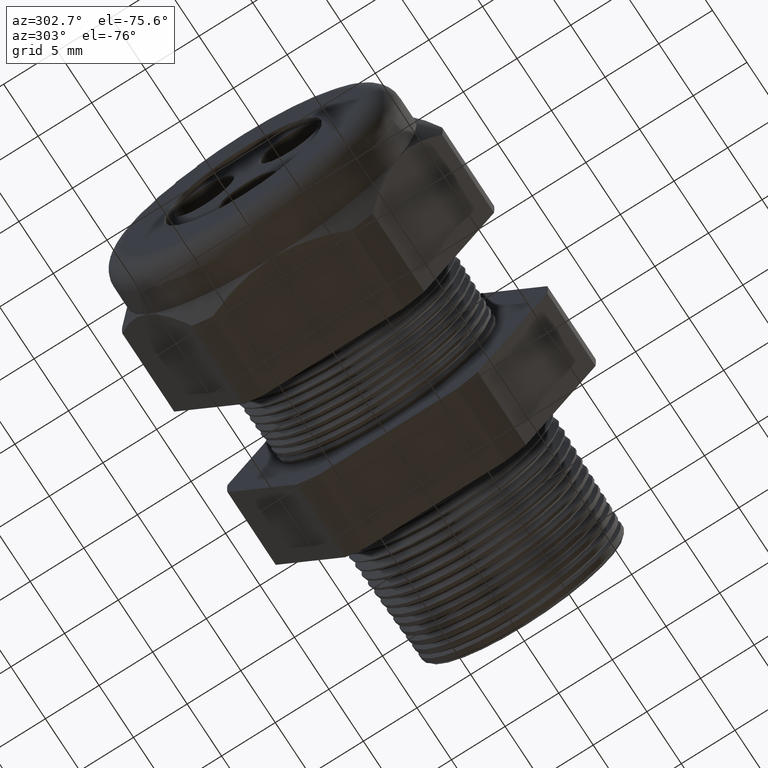
[diagram: clean part render]
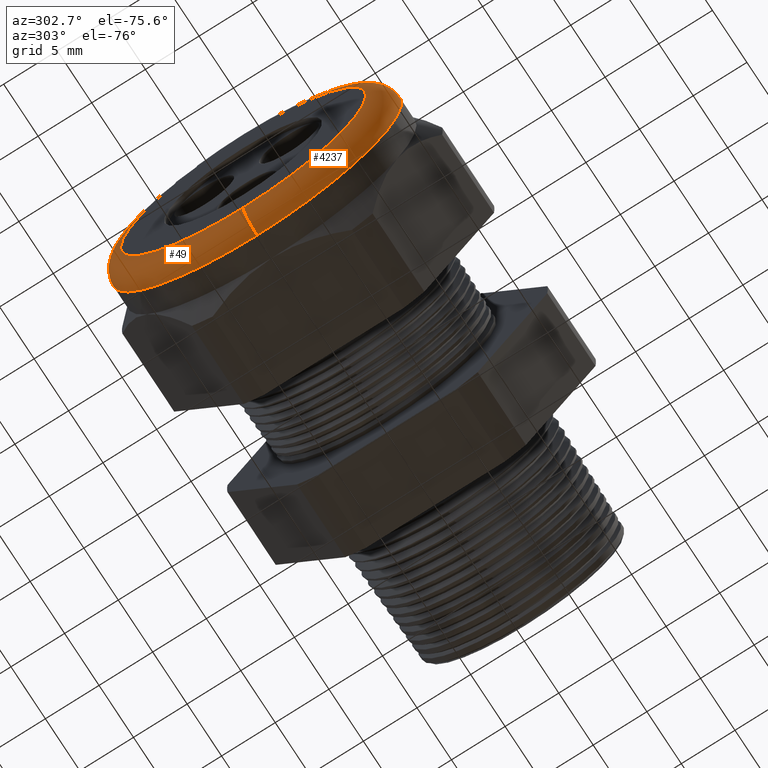
[diagram: same view with one multi-face feature highlighted, each face labeled with its STEP entity id]
A machine part, auxiliary view. The highlighted faces form ONE feature: a constant-radius fillet chain: 2 tangent blend faces with common blend radius 2.032 mm. The faces share edges in the B-rep.
Their STEP definitions:
[1] entity #49 (Torus):
#49 = ADVANCED_FACE ( 'NONE', ( #608 ), #607, .T. ) ;
#602 = DIRECTION ( 'NONE',  ( 0.0000000000000000000, 0.0000000000000000000, 1.000000000000000000 ) ) ;
#603 = DIRECTION ( 'NONE',  ( -1.000000000000000000, 0.0000000000000000000, 0.0000000000000000000 ) ) ;
#604 = CARTESIAN_POINT ( 'NONE',  ( -1.330000000000000100, 0.0000000000000000000, 0.0000000000000000000 ) ) ;
#605 = AXIS2_PLACEMENT_3D ( 'NONE', #604, #603, #602 ) ;
#607 = TOROIDAL_SURFACE ( 'NONE', #605, 0.4499999999999999600, 0.08000000000000000200 ) ;
#608 = FACE_OUTER_BOUND ( 'NONE', #5324, .T. ) ;
#3717 = CARTESIAN_POINT ( 'NONE',  ( -1.330000000000000100, 0.0000000000000000000, 0.0000000000000000000 ) ) ;
#3718 = AXIS2_PLACEMENT_3D ( 'NONE', #3717, #3779, #3778 ) ;
#3719 = CIRCLE ( 'NONE', #3718, 0.5299999999999999200 ) ;
#3721 = CARTESIAN_POINT ( 'NONE',  ( -1.330000000000000100, 0.0000000000000000000, -0.5299999999999999200 ) ) ;
#3722 = DIRECTION ( 'NONE',  ( 0.0000000000000000000, -1.224646799147353900E-016, 1.000000000000000000 ) ) ;
#3723 = DIRECTION ( 'NONE',  ( 0.0000000000000000000, 1.000000000000000000, 1.224646799147353200E-016 ) ) ;
#3724 = CARTESIAN_POINT ( 'NONE',  ( -1.330000000000000100, 5.510910596163088900E-017, -0.4499999999999999600 ) ) ;
#3725 = AXIS2_PLACEMENT_3D ( 'NONE', #3724, #3723, #3722 ) ;
#3726 = CIRCLE ( 'NONE', #3725, 0.07999999999999996000 ) ;
#3727 = CARTESIAN_POINT ( 'NONE',  ( -1.330000000000000100, 6.490628035480971200E-017, 0.5299999999999999200 ) ) ;
#3728 = DIRECTION ( 'NONE',  ( 0.0000000000000000000, 0.0000000000000000000, 1.000000000000000000 ) ) ;
#3729 = DIRECTION ( 'NONE',  ( -1.000000000000000000, 0.0000000000000000000, 0.0000000000000000000 ) ) ;
#3730 = CARTESIAN_POINT ( 'NONE',  ( -1.409999999999999900, 0.0000000000000000000, 0.0000000000000000000 ) ) ;
#3731 = AXIS2_PLACEMENT_3D ( 'NONE', #3730, #3729, #3728 ) ;
#3732 = CIRCLE ( 'NONE', #3731, 0.4499999999999999600 ) ;
#3733 = CARTESIAN_POINT ( 'NONE',  ( -1.409999999999999900, 6.000769315822029800E-017, -0.4499999999999999600 ) ) ;
#3778 = DIRECTION ( 'NONE',  ( 0.0000000000000000000, 0.0000000000000000000, 1.000000000000000000 ) ) ;
#3779 = DIRECTION ( 'NONE',  ( 1.000000000000000000, 0.0000000000000000000, 0.0000000000000000000 ) ) ;
#3935 = DIRECTION ( 'NONE',  ( 0.0000000000000000000, -1.000000000000000000, 0.0000000000000000000 ) ) ;
#3936 = AXIS2_PLACEMENT_3D ( 'NONE', #3943, #3935, #4000 ) ;
#3937 = CIRCLE ( 'NONE', #3936, 0.07999999999999996000 ) ;
#3943 = CARTESIAN_POINT ( 'NONE',  ( -1.330000000000000100, 0.0000000000000000000, 0.4499999999999999600 ) ) ;
#3999 = CARTESIAN_POINT ( 'NONE',  ( -1.409999999999999900, 0.0000000000000000000, 0.4499999999999999600 ) ) ;
#4000 = DIRECTION ( 'NONE',  ( 0.0000000000000000000, 0.0000000000000000000, -1.000000000000000000 ) ) ;
#5317 = VERTEX_POINT ( 'NONE', #3733 ) ;
#5318 = ORIENTED_EDGE ( 'NONE', *, *, #5319, .F. ) ;
#5319 = EDGE_CURVE ( 'NONE', #5449, #5317, #3732, .T. ) ;
#5320 = VERTEX_POINT ( 'NONE', #3727 ) ;
#5321 = ORIENTED_EDGE ( 'NONE', *, *, #5322, .T. ) ;
#5322 = EDGE_CURVE ( 'NONE', #5323, #5317, #3726, .T. ) ;
#5323 = VERTEX_POINT ( 'NONE', #3721 ) ;
#5324 = EDGE_LOOP ( 'NONE', ( #5325, #5321, #5318, #5448 ) ) ;
#5325 = ORIENTED_EDGE ( 'NONE', *, *, #5326, .F. ) ;
#5326 = EDGE_CURVE ( 'NONE', #5323, #5320, #3719, .T. ) ;
#5447 = EDGE_CURVE ( 'NONE', #5320, #5449, #3937, .T. ) ;
#5448 = ORIENTED_EDGE ( 'NONE', *, *, #5447, .F. ) ;
#5449 = VERTEX_POINT ( 'NONE', #3999 ) ;
[2] entity #4237 (Torus):
#1850 = DIRECTION ( 'NONE',  ( 0.0000000000000000000, 0.0000000000000000000, 1.000000000000000000 ) ) ;
#1851 = DIRECTION ( 'NONE',  ( -1.000000000000000000, 0.0000000000000000000, 0.0000000000000000000 ) ) ;
#1852 = AXIS2_PLACEMENT_3D ( 'NONE', #1857, #1851, #1850 ) ;
#1853 = TOROIDAL_SURFACE ( 'NONE', #1852, 0.4499999999999999600, 0.08000000000000000200 ) ;
#1854 = FACE_OUTER_BOUND ( 'NONE', #4234, .T. ) ;
#1857 = CARTESIAN_POINT ( 'NONE',  ( -1.330000000000000100, 0.0000000000000000000, 0.0000000000000000000 ) ) ;
#3721 = CARTESIAN_POINT ( 'NONE',  ( -1.330000000000000100, 0.0000000000000000000, -0.5299999999999999200 ) ) ;
#3722 = DIRECTION ( 'NONE',  ( 0.0000000000000000000, -1.224646799147353900E-016, 1.000000000000000000 ) ) ;
#3723 = DIRECTION ( 'NONE',  ( 0.0000000000000000000, 1.000000000000000000, 1.224646799147353200E-016 ) ) ;
#3724 = CARTESIAN_POINT ( 'NONE',  ( -1.330000000000000100, 5.510910596163088900E-017, -0.4499999999999999600 ) ) ;
#3725 = AXIS2_PLACEMENT_3D ( 'NONE', #3724, #3723, #3722 ) ;
#3726 = CIRCLE ( 'NONE', #3725, 0.07999999999999996000 ) ;
#3727 = CARTESIAN_POINT ( 'NONE',  ( -1.330000000000000100, 6.490628035480971200E-017, 0.5299999999999999200 ) ) ;
#3733 = CARTESIAN_POINT ( 'NONE',  ( -1.409999999999999900, 6.000769315822029800E-017, -0.4499999999999999600 ) ) ;
#3752 = DIRECTION ( 'NONE',  ( 0.0000000000000000000, 0.0000000000000000000, 1.000000000000000000 ) ) ;
#3753 = DIRECTION ( 'NONE',  ( 1.000000000000000000, 0.0000000000000000000, 0.0000000000000000000 ) ) ;
#3754 = CARTESIAN_POINT ( 'NONE',  ( -1.330000000000000100, 0.0000000000000000000, 0.0000000000000000000 ) ) ;
#3755 = AXIS2_PLACEMENT_3D ( 'NONE', #3754, #3753, #3752 ) ;
#3756 = CIRCLE ( 'NONE', #3755, 0.5299999999999999200 ) ;
#3800 = DIRECTION ( 'NONE',  ( 0.0000000000000000000, 0.0000000000000000000, 1.000000000000000000 ) ) ;
#3801 = DIRECTION ( 'NONE',  ( -1.000000000000000000, 0.0000000000000000000, 0.0000000000000000000 ) ) ;
#3802 = CARTESIAN_POINT ( 'NONE',  ( -1.409999999999999900, 0.0000000000000000000, 0.0000000000000000000 ) ) ;
#3803 = AXIS2_PLACEMENT_3D ( 'NONE', #3802, #3801, #3800 ) ;
#3804 = CIRCLE ( 'NONE', #3803, 0.4499999999999999600 ) ;
#3935 = DIRECTION ( 'NONE',  ( 0.0000000000000000000, -1.000000000000000000, 0.0000000000000000000 ) ) ;
#3936 = AXIS2_PLACEMENT_3D ( 'NONE', #3943, #3935, #4000 ) ;
#3937 = CIRCLE ( 'NONE', #3936, 0.07999999999999996000 ) ;
#3943 = CARTESIAN_POINT ( 'NONE',  ( -1.330000000000000100, 0.0000000000000000000, 0.4499999999999999600 ) ) ;
#3999 = CARTESIAN_POINT ( 'NONE',  ( -1.409999999999999900, 0.0000000000000000000, 0.4499999999999999600 ) ) ;
#4000 = DIRECTION ( 'NONE',  ( 0.0000000000000000000, 0.0000000000000000000, -1.000000000000000000 ) ) ;
#4231 = ORIENTED_EDGE ( 'NONE', *, *, #5348, .F. ) ;
#4232 = ORIENTED_EDGE ( 'NONE', *, *, #5447, .T. ) ;
#4233 = ORIENTED_EDGE ( 'NONE', *, *, #5338, .F. ) ;
#4234 = EDGE_LOOP ( 'NONE', ( #4235, #4233, #4232, #4231 ) ) ;
#4235 = ORIENTED_EDGE ( 'NONE', *, *, #5322, .F. ) ;
#4237 = ADVANCED_FACE ( 'NONE', ( #1854 ), #1853, .T. ) ;
#5317 = VERTEX_POINT ( 'NONE', #3733 ) ;
#5320 = VERTEX_POINT ( 'NONE', #3727 ) ;
#5322 = EDGE_CURVE ( 'NONE', #5323, #5317, #3726, .T. ) ;
#5323 = VERTEX_POINT ( 'NONE', #3721 ) ;
#5338 = EDGE_CURVE ( 'NONE', #5320, #5323, #3756, .T. ) ;
#5348 = EDGE_CURVE ( 'NONE', #5317, #5449, #3804, .T. ) ;
#5447 = EDGE_CURVE ( 'NONE', #5320, #5449, #3937, .T. ) ;
#5449 = VERTEX_POINT ( 'NONE', #3999 ) ;